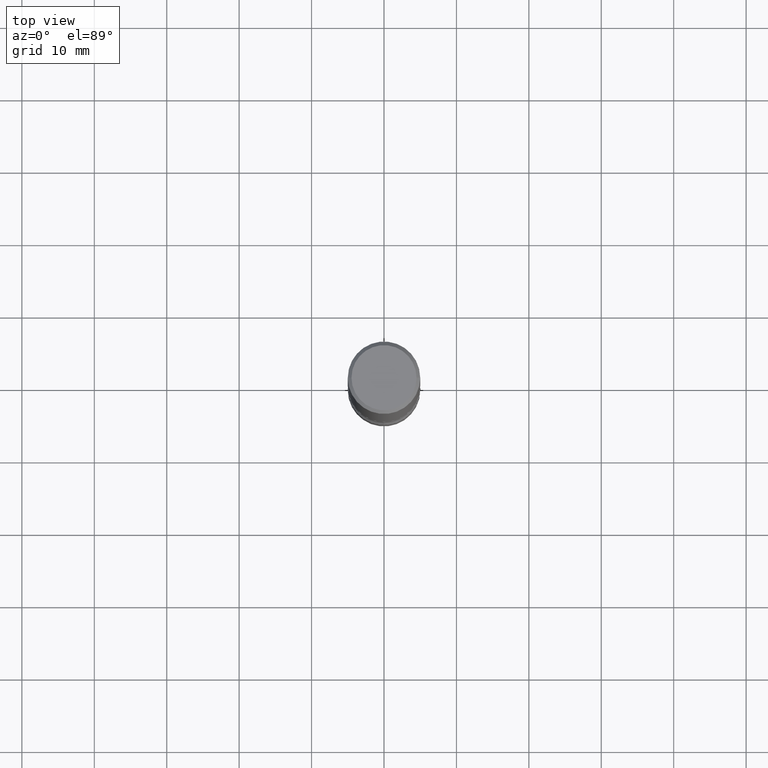
[diagram: clean part render]
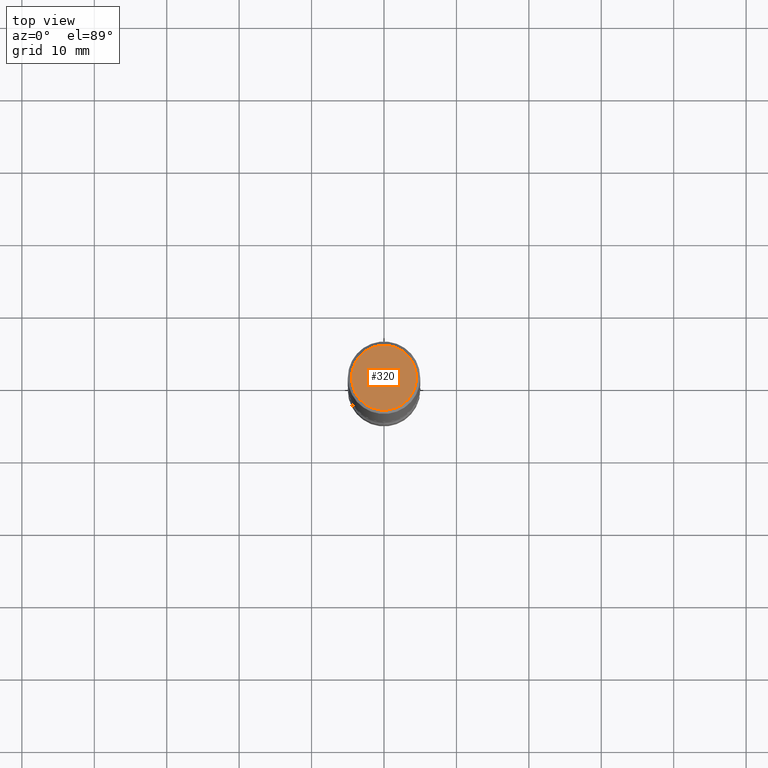
[diagram: same view with one face highlighted and labeled with its STEP entity id]
A machine part, top view. The second image highlights one B-rep face of the part: STEP entity #320.
In plain terms, the highlighted planar face has unit normal (0, -0, -1).
Its self-contained STEP definition (entity closure, byte-faithful):
#9 = DIRECTION ( 'NONE',  ( 1.000000000000000000, -6.982962677686266711E-15, 4.875932113059883053E-29 ) ) ;
#27 = DIRECTION ( 'NONE',  ( -1.000000000000000000, 6.982962677686265922E-15, -4.876176775795935793E-29 ) ) ;
#41 = CARTESIAN_POINT ( 'NONE',  ( 0.1768499999999998129, -1.316798864272041155E-15, 4.268512490109333727E-18 ) ) ;
#102 = CARTESIAN_POINT ( 'NONE',  ( -1.043851414335219820E-46, 1.490343170380447200E-32, 4.268512490100411279E-18 ) ) ;
#138 = EDGE_LOOP ( 'NONE', ( #431, #517 ) ) ;
#164 = DIRECTION ( 'NONE',  ( -2.445468806185136597E-29, 3.491481338843145583E-15, 1.000000000000000000 ) ) ;
#176 = AXIS2_PLACEMENT_3D ( 'NONE', #347, #164, #295 ) ;
#225 = DIRECTION ( 'NONE',  ( -2.445468806185136597E-29, 3.491481338843145583E-15, 1.000000000000000000 ) ) ;
#242 = FACE_OUTER_BOUND ( 'NONE', #138, .T. ) ;
#295 = DIRECTION ( 'NONE',  ( 1.000000000000000000, -6.982962677686266711E-15, 4.875932113059883053E-29 ) ) ;
#316 = VERTEX_POINT ( 'NONE', #498 ) ;
#320 = ADVANCED_FACE ( 'NONE', ( #242 ), #550, .F. ) ;
#347 = CARTESIAN_POINT ( 'NONE',  ( -1.043851414335219820E-46, 1.490343170380447200E-32, 4.268512490100411279E-18 ) ) ;
#350 = CIRCLE ( 'NONE', #176, 0.1768499999999998129 ) ;
#371 = AXIS2_PLACEMENT_3D ( 'NONE', #102, #225, #9 ) ;
#431 = ORIENTED_EDGE ( 'NONE', *, *, #542, .T. ) ;
#461 = CIRCLE ( 'NONE', #371, 0.1768499999999998129 ) ;
#462 = CARTESIAN_POINT ( 'NONE',  ( 1.234936949548814815E-15, 0.1768499999999998129, -6.153342185293594620E-16 ) ) ;
#472 = VERTEX_POINT ( 'NONE', #41 ) ;
#476 = AXIS2_PLACEMENT_3D ( 'NONE', #462, #508, #27 ) ;
#498 = CARTESIAN_POINT ( 'NONE',  ( -0.1768499999999998129, 1.269851762937246267E-15, 4.268512490091652920E-18 ) ) ;
#508 = DIRECTION ( 'NONE',  ( 2.438088387897960049E-29, -3.491481338843145188E-15, -1.000000000000000000 ) ) ;
#509 = EDGE_CURVE ( 'NONE', #472, #316, #350, .T. ) ;
#517 = ORIENTED_EDGE ( 'NONE', *, *, #509, .T. ) ;
#542 = EDGE_CURVE ( 'NONE', #316, #472, #461, .T. ) ;
#550 = PLANE ( 'NONE',  #476 ) ;